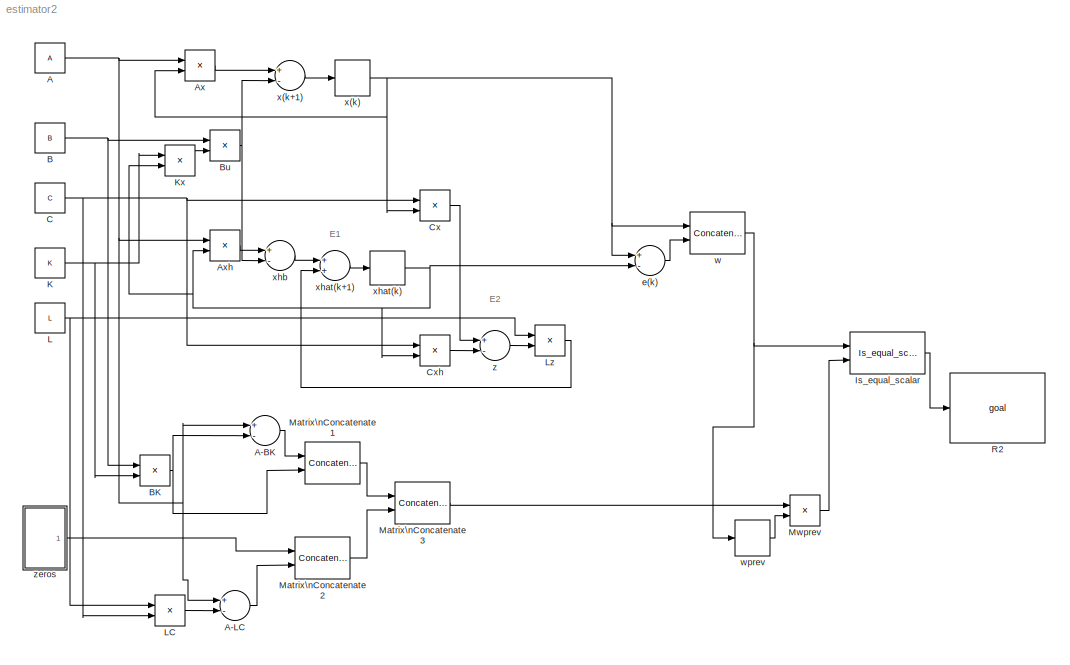
MODEL estimator2
KIND model
BLOCK [Constant] A
  SID = 2
  Value = A
  VectorParams1D = off
BLOCK [Sum] A-BK
  InputSameDT = off
  Inputs = +-
  OutDataTypeStr = Inherit: Inherit via internal rule
  Ports = [2, 1]
  SID = 67
  SaturateOnIntegerOverflow = off
BLOCK [Sum] A-LC
  InputSameDT = off
  Inputs = +-
  OutDataTypeStr = Inherit: Inherit via internal rule
  Ports = [2, 1]
  SID = 17
  SaturateOnIntegerOverflow = off
BLOCK [Product] Ax
  InputSameDT = off
  Multiplication = Matrix(*)
  OutDataTypeStr = Inherit: Inherit via internal rule
  Ports = [2, 1]
  RndMeth = Floor
  SID = 3
  SaturateOnIntegerOverflow = off
BLOCK [Product] Axh
  InputSameDT = off
  Multiplication = Matrix(*)
  OutDataTypeStr = Inherit: Inherit via internal rule
  Ports = [2, 1]
  RndMeth = Floor
  SID = 4
  SaturateOnIntegerOverflow = off
BLOCK [Constant] B
  SID = 5
  Value = B
  VectorParams1D = off
BLOCK [Product] BK
  InputSameDT = off
  Multiplication = Matrix(*)
  OutDataTypeStr = Inherit: Inherit via internal rule
  Ports = [2, 1]
  RndMeth = Floor
  SID = 6
  SaturateOnIntegerOverflow = off
BLOCK [Product] Bu
  InputSameDT = off
  Multiplication = Matrix(*)
  OutDataTypeStr = Inherit: Inherit via internal rule
  Ports = [2, 1]
  RndMeth = Floor
  SID = 7
  SaturateOnIntegerOverflow = off
BLOCK [Constant] C
  SID = 8
  Value = C
  VectorParams1D = off
BLOCK [Product] Cx
  InputSameDT = off
  Multiplication = Matrix(*)
  OutDataTypeStr = Inherit: Inherit via internal rule
  Ports = [2, 1]
  RndMeth = Floor
  SID = 9
  SaturateOnIntegerOverflow = off
BLOCK [Product] Cxh
  InputSameDT = off
  Multiplication = Matrix(*)
  OutDataTypeStr = Inherit: Inherit via internal rule
  Ports = [2, 1]
  RndMeth = Floor
  SID = 10
  SaturateOnIntegerOverflow = off
BLOCK [Reference] Is_equal_scalar  REF=Is_equal_scalar/Is_equal_scalar
  FunctionWithSeparateData = off
  GeneratePreprocessorConditionals = off
  Ports = [2, 1]
  SID = 12
  ShowPortLabels = FromPortIcon
  SourceBlock = Is_equal_scalar/Is_equal_scalar
  SourceType = Is_equal_scalar
  SystemSampleTime = -1
BLOCK [Constant] K
  SID = 13
  Value = K
  VectorParams1D = off
BLOCK [Product] Kx
  InputSameDT = off
  Multiplication = Matrix(*)
  OutDataTypeStr = Inherit: Inherit via internal rule
  Ports = [2, 1]
  RndMeth = Floor
  SID = 14
  SaturateOnIntegerOverflow = off
BLOCK [Constant] L
  SID = 15
  Value = L
  VectorParams1D = off
BLOCK [Product] LC
  InputSameDT = off
  Multiplication = Matrix(*)
  OutDataTypeStr = Inherit: Inherit via internal rule
  Ports = [2, 1]
  RndMeth = Floor
  SID = 16
  SaturateOnIntegerOverflow = off
BLOCK [Product] Lz
  InputSameDT = off
  Multiplication = Matrix(*)
  OutDataTypeStr = Inherit: Inherit via internal rule
  Ports = [2, 1]
  RndMeth = Floor
  SID = 18
  SaturateOnIntegerOverflow = off
BLOCK [Concatenate] Matrix\nConcatenate1
  ConcatenateDimension = 2
  Mode = Multidimensional array
  Ports = [2, 1]
  SID = 19
BLOCK [Concatenate] Matrix\nConcatenate2
  ConcatenateDimension = 2
  Mode = Multidimensional array
  Ports = [2, 1]
  SID = 20
BLOCK [Concatenate] Matrix\nConcatenate3
  Mode = Multidimensional array
  Ports = [2, 1]
  SID = 21
BLOCK [Product] Mwprev
  InputSameDT = off
  Multiplication = Matrix(*)
  OutDataTypeStr = Inherit: Inherit via internal rule
  Ports = [2, 1]
  RndMeth = Floor
  SID = 25
  SaturateOnIntegerOverflow = off
BLOCK [Reference] R2  REF=goal/goal  (lib defined in mdl_8f4c38bfa861)
  FunctionWithSeparateData = off
  GeneratePreprocessorConditionals = off
  Ports = [1]
  SID = 23
  ShowPortLabels = FromPortIcon
  SourceBlock = goal/goal
  SourceType = Goal
  SystemSampleTime = -1
BLOCK [Sum] e(k)
  InputSameDT = off
  Inputs = +-
  OutDataTypeStr = Inherit: Inherit via internal rule
  Ports = [2, 1]
  SID = 24
  SaturateOnIntegerOverflow = off
BLOCK [Concatenate] w
  Mode = Multidimensional array
  Ports = [2, 1]
  SID = 27
BLOCK [Delay] wprev
  DelayLength = 1
  InitialCondition = x1
  InputPortMap = u0
  Ports = [1, 1]
  SID = 26
  SampleTime = 0.1
BLOCK [Delay] x(k)
  DelayLength = 1
  InitialCondition = x1
  InputPortMap = u0
  Ports = [1, 1]
  SID = 28
  SampleTime = 0.1
BLOCK [Sum] x(k+1)
  InputSameDT = off
  Inputs = +-
  OutDataTypeStr = Inherit: Inherit via internal rule
  Ports = [2, 1]
  SID = 29
  SaturateOnIntegerOverflow = off
BLOCK [Delay] xhat(k)
  DelayLength = 1
  InitialCondition = x1h
  InputPortMap = u0
  Ports = [1, 1]
  SID = 30
BLOCK [Sum] xhat(k+1)
  InputSameDT = off
  OutDataTypeStr = Inherit: Inherit via internal rule
  Ports = [2, 1]
  SID = 31
  SaturateOnIntegerOverflow = off
BLOCK [Sum] xhb
  InputSameDT = off
  Inputs = +-
  OutDataTypeStr = Inherit: Inherit via internal rule
  Ports = [2, 1]
  SID = 32
  SaturateOnIntegerOverflow = off
BLOCK [Sum] z
  InputSameDT = off
  Inputs = +-
  OutDataTypeStr = Inherit: Inherit via internal rule
  Ports = [2, 1]
  SID = 33
  SaturateOnIntegerOverflow = off
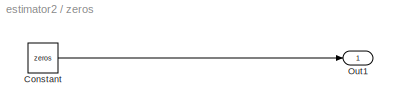
BLOCK [SubSystem] zeros
  FunctionWithSeparateData = off
  MaskHideContents = off
  MinAlgLoopOccurrences = off
  Opaque = off
  Ports = [0, 1]
  PropExecContextOutsideSubsystem = off
  RTWSystemCode = Auto
  RequestExecContextInheritance = off
  SID = 68
BLOCK [Constant] zeros/Constant
  SID = 69
  Value = zeros
  VectorParams1D = off
BLOCK [Outport] zeros/Out1
  IconDisplay = Port number
  SID = 70
ANNOTATION (root): E1
ANNOTATION (root): E2
LINE A-BK:1 -> Matrix\nConcatenate1:1
LINE A-LC:1 -> Matrix\nConcatenate2:2
NET A:1 -> A-BK:1, A-LC:1, Ax:1, Axh:1
LINE Ax:1 -> x(k+1):1
LINE Axh:1 -> xhb:1
NET B:1 -> BK:1, Bu:1
NET BK:1 -> A-BK:2, Matrix\nConcatenate1:2
NET Bu:1 -> x(k+1):2, xhb:2
NET C:1 -> Cx:1, Cxh:1, LC:2
LINE Cx:1 -> z:1
LINE Cxh:1 -> z:2
LINE Is_equal_scalar:1 -> R2:1
NET K:1 -> BK:2, Kx:1
LINE Kx:1 -> Bu:2
NET L:1 -> LC:1, Lz:1
LINE LC:1 -> A-LC:2
LINE Lz:1 -> xhat(k+1):2
LINE Matrix\nConcatenate1:1 -> Matrix\nConcatenate3:1
LINE Matrix\nConcatenate2:1 -> Matrix\nConcatenate3:2
LINE Matrix\nConcatenate3:1 -> Mwprev:1
LINE Mwprev:1 -> Is_equal_scalar:2
LINE e(k):1 -> w:2
NET w:1 -> Is_equal_scalar:1, wprev:1
LINE wprev:1 -> Mwprev:2
NET x(k):1 -> Ax:2, Cx:2, e(k):1, w:1
LINE x(k+1):1 -> x(k):1
NET xhat(k):1 -> Axh:2, Cxh:2, Kx:2, e(k):2
LINE xhat(k+1):1 -> xhat(k):1
LINE xhb:1 -> xhat(k+1):1
LINE z:1 -> Lz:2
LINE zeros/Constant:1 -> zeros/Out1:1
LINE zeros:1 -> Matrix\nConcatenate2:1
note: NET lines group one-source signal fan-out (src -> all destinations, sorted); 1:1 wires keep LINE
